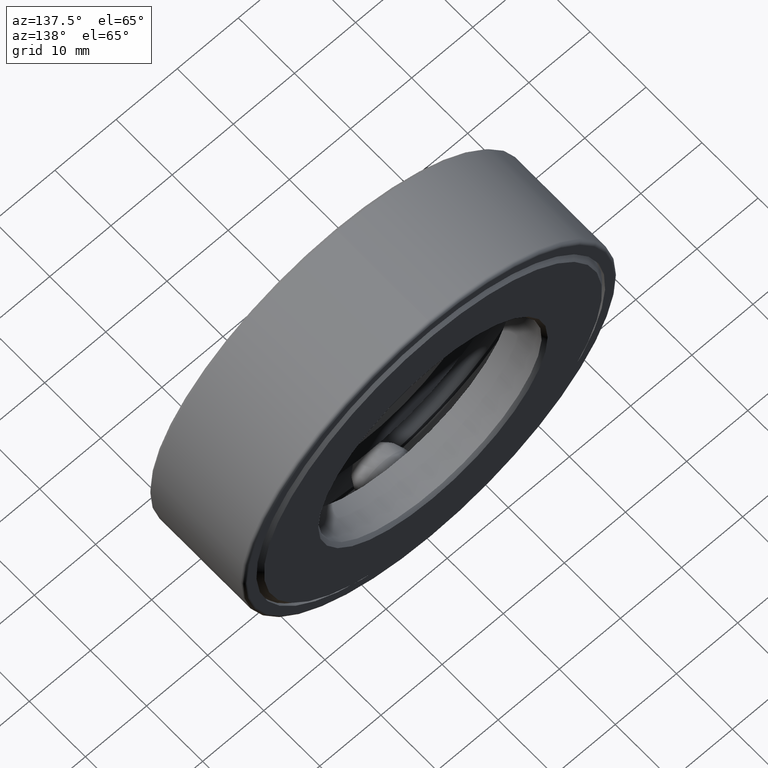
[diagram: clean part render]
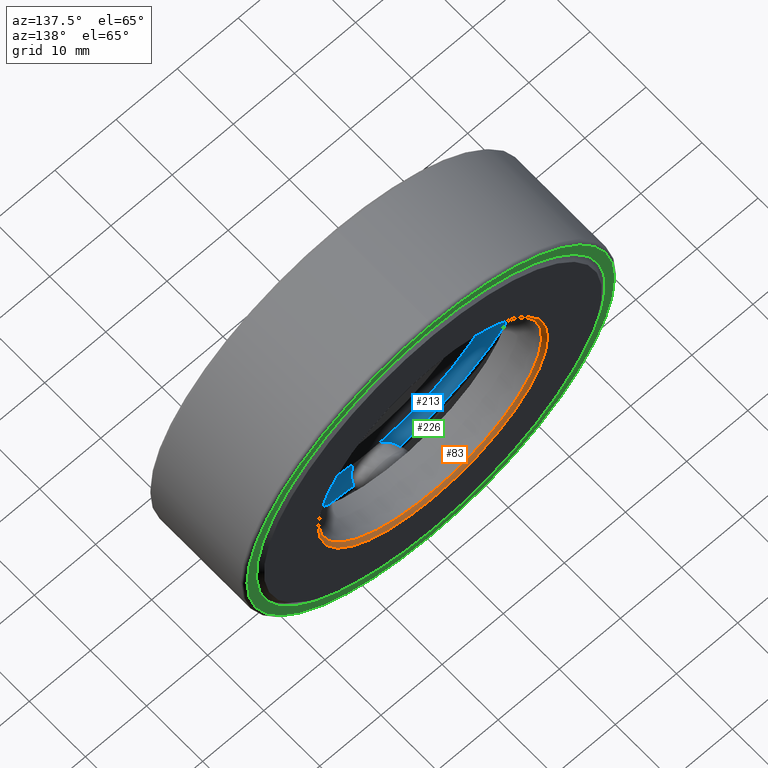
[diagram: same view with three faces highlighted in distinct colors, each labeled with its STEP entity id]
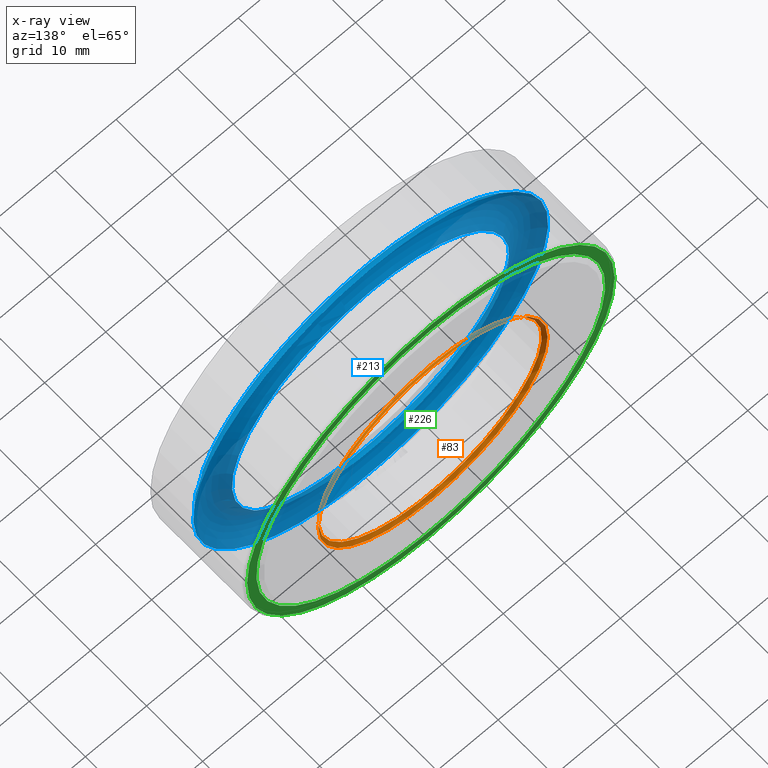
[diagram: x-ray of the same camera — body ghosted, the three highlighted faces saturated]
A machine part, auxiliary view with three faces highlighted in distinct colors.
The next image is the same camera in x-ray (body ghosted, the three faces saturated) — at least one of them is partly hidden behind the body in this view.
Their STEP definitions:

[orange] entity #83 — the highlighted conical surface has half-angle 45 deg.
#18 = EDGE_LOOP ( 'NONE', ( #506 ) ) ;
#36 = AXIS2_PLACEMENT_3D ( 'NONE', #382, #462, #47 ) ;
#47 = DIRECTION ( 'NONE',  ( 0.0000000000000000000, 0.0000000000000000000, 1.000000000000000000 ) ) ;
#78 = VERTEX_POINT ( 'NONE', #152 ) ;
#83 = ADVANCED_FACE ( 'NONE', ( #551, #536 ), #127, .F. ) ;
#107 = DIRECTION ( 'NONE',  ( 0.0000000000000000000, 0.0000000000000000000, 1.000000000000000000 ) ) ;
#127 = CONICAL_SURFACE ( 'NONE', #261, 0.7187500000000000000, 0.7853981633974517200 ) ;
#128 = ORIENTED_EDGE ( 'NONE', *, *, #538, .F. ) ;
#152 = CARTESIAN_POINT ( 'NONE',  ( 0.0000000000000000000, 0.6875000000000000000, 0.7387500000000001300 ) ) ;
#171 = CIRCLE ( 'NONE', #36, 0.7387500000000001300 ) ;
#185 = DIRECTION ( 'NONE',  ( -0.0000000000000000000, 1.000000000000000000, -0.0000000000000000000 ) ) ;
#246 = CARTESIAN_POINT ( 'NONE',  ( 0.0000000000000000000, 0.6674999999999998700, 0.0000000000000000000 ) ) ;
#261 = AXIS2_PLACEMENT_3D ( 'NONE', #246, #395, #107 ) ;
#329 = DIRECTION ( 'NONE',  ( 0.0000000000000000000, 0.0000000000000000000, 1.000000000000000000 ) ) ;
#353 = EDGE_LOOP ( 'NONE', ( #128 ) ) ;
#382 = CARTESIAN_POINT ( 'NONE',  ( 0.0000000000000000000, 0.6875000000000000000, 0.0000000000000000000 ) ) ;
#395 = DIRECTION ( 'NONE',  ( -0.0000000000000000000, 1.000000000000000000, -0.0000000000000000000 ) ) ;
#411 = VERTEX_POINT ( 'NONE', #481 ) ;
#427 = CIRCLE ( 'NONE', #448, 0.7187500000000000000 ) ;
#448 = AXIS2_PLACEMENT_3D ( 'NONE', #468, #185, #329 ) ;
#451 = EDGE_CURVE ( 'NONE', #78, #78, #171, .T. ) ;
#462 = DIRECTION ( 'NONE',  ( -0.0000000000000000000, 1.000000000000000000, -0.0000000000000000000 ) ) ;
#468 = CARTESIAN_POINT ( 'NONE',  ( 0.0000000000000000000, 0.6674999999999998700, 0.0000000000000000000 ) ) ;
#481 = CARTESIAN_POINT ( 'NONE',  ( 0.0000000000000000000, 0.6674999999999998700, 0.7187500000000000000 ) ) ;
#506 = ORIENTED_EDGE ( 'NONE', *, *, #451, .T. ) ;
#536 = FACE_BOUND ( 'NONE', #353, .T. ) ;
#538 = EDGE_CURVE ( 'NONE', #411, #411, #427, .T. ) ;
#551 = FACE_OUTER_BOUND ( 'NONE', #18, .T. ) ;

[blue] entity #213 — the highlighted toroidal blend (fillet) surface has major radius 25.854 mm and minor (blend) radius 3.9688 mm.
#59 = ORIENTED_EDGE ( 'NONE', *, *, #470, .T. ) ;
#98 = DIRECTION ( 'NONE',  ( -0.0000000000000000000, 1.000000000000000000, -0.0000000000000000000 ) ) ;
#154 = AXIS2_PLACEMENT_3D ( 'NONE', #596, #313, #323 ) ;
#212 = CARTESIAN_POINT ( 'NONE',  ( 0.0000000000000000000, 0.3437500000000000000, 0.0000000000000000000 ) ) ;
#213 = ADVANCED_FACE ( 'NONE', ( #479, #237 ), #587, .F. ) ;
#229 = CIRCLE ( 'NONE', #154, 0.8928749999999999700 ) ;
#237 = FACE_OUTER_BOUND ( 'NONE', #292, .T. ) ;
#238 = EDGE_CURVE ( 'NONE', #493, #493, #229, .T. ) ;
#292 = EDGE_LOOP ( 'NONE', ( #59 ) ) ;
#313 = DIRECTION ( 'NONE',  ( -0.0000000000000000000, 1.000000000000000000, -0.0000000000000000000 ) ) ;
#323 = DIRECTION ( 'NONE',  ( 0.0000000000000000000, 0.0000000000000000000, 1.000000000000000000 ) ) ;
#374 = EDGE_LOOP ( 'NONE', ( #428 ) ) ;
#402 = DIRECTION ( 'NONE',  ( 0.0000000000000000000, 0.0000000000000000000, 1.000000000000000000 ) ) ;
#428 = ORIENTED_EDGE ( 'NONE', *, *, #238, .F. ) ;
#461 = CARTESIAN_POINT ( 'NONE',  ( 0.0000000000000000000, 0.2499999999999998600, 0.0000000000000000000 ) ) ;
#470 = EDGE_CURVE ( 'NONE', #556, #556, #590, .T. ) ;
#479 = FACE_OUTER_BOUND ( 'NONE', #374, .T. ) ;
#493 = VERTEX_POINT ( 'NONE', #566 ) ;
#512 = CARTESIAN_POINT ( 'NONE',  ( 0.0000000000000000000, 0.2499999999999998600, 1.142874999999999900 ) ) ;
#525 = DIRECTION ( 'NONE',  ( -0.0000000000000000000, 1.000000000000000000, -0.0000000000000000000 ) ) ;
#554 = DIRECTION ( 'NONE',  ( 0.0000000000000000000, 0.0000000000000000000, 1.000000000000000000 ) ) ;
#556 = VERTEX_POINT ( 'NONE', #512 ) ;
#559 = AXIS2_PLACEMENT_3D ( 'NONE', #461, #98, #554 ) ;
#566 = CARTESIAN_POINT ( 'NONE',  ( 0.0000000000000000000, 0.2499999999999999200, 0.8928749999999999700 ) ) ;
#587 = TOROIDAL_SURFACE ( 'NONE', #597, 1.017874999999999900, 0.1562500000000000000 ) ;
#590 = CIRCLE ( 'NONE', #559, 1.142874999999999900 ) ;
#596 = CARTESIAN_POINT ( 'NONE',  ( 0.0000000000000000000, 0.2499999999999999200, 0.0000000000000000000 ) ) ;
#597 = AXIS2_PLACEMENT_3D ( 'NONE', #212, #525, #402 ) ;

[green] entity #226 — the highlighted planar face has unit normal (0, -1, 0).
#13 = CARTESIAN_POINT ( 'NONE',  ( 0.0000000000000000000, 0.6724999999999998800, 0.0000000000000000000 ) ) ;
#41 = ORIENTED_EDGE ( 'NONE', *, *, #115, .T. ) ;
#60 = PLANE ( 'NONE',  #133 ) ;
#62 = DIRECTION ( 'NONE',  ( 0.0000000000000000000, -0.0000000000000000000, -1.000000000000000000 ) ) ;
#64 = DIRECTION ( 'NONE',  ( 0.0000000000000000000, 0.0000000000000000000, 1.000000000000000000 ) ) ;
#68 = ORIENTED_EDGE ( 'NONE', *, *, #105, .F. ) ;
#70 = DIRECTION ( 'NONE',  ( -0.0000000000000000000, 1.000000000000000000, -0.0000000000000000000 ) ) ;
#90 = VERTEX_POINT ( 'NONE', #284 ) ;
#105 = EDGE_CURVE ( 'NONE', #90, #90, #173, .T. ) ;
#115 = EDGE_CURVE ( 'NONE', #589, #589, #263, .T. ) ;
#122 = CARTESIAN_POINT ( 'NONE',  ( 0.0000000000000000000, 0.6724999999999998800, 0.0000000000000000000 ) ) ;
#133 = AXIS2_PLACEMENT_3D ( 'NONE', #122, #579, #62 ) ;
#173 = CIRCLE ( 'NONE', #595, 1.123125000000000200 ) ;
#193 = CARTESIAN_POINT ( 'NONE',  ( 0.0000000000000000000, 0.6724999999999998800, 1.183125000000000000 ) ) ;
#226 = ADVANCED_FACE ( 'NONE', ( #344, #399 ), #60, .F. ) ;
#248 = DIRECTION ( 'NONE',  ( -0.0000000000000000000, 1.000000000000000000, -0.0000000000000000000 ) ) ;
#263 = CIRCLE ( 'NONE', #430, 1.183125000000000000 ) ;
#284 = CARTESIAN_POINT ( 'NONE',  ( 0.0000000000000000000, 0.6724999999999998800, 1.123125000000000200 ) ) ;
#344 = FACE_BOUND ( 'NONE', #453, .T. ) ;
#358 = CARTESIAN_POINT ( 'NONE',  ( 0.0000000000000000000, 0.6724999999999998800, 0.0000000000000000000 ) ) ;
#399 = FACE_OUTER_BOUND ( 'NONE', #465, .T. ) ;
#430 = AXIS2_PLACEMENT_3D ( 'NONE', #13, #248, #64 ) ;
#453 = EDGE_LOOP ( 'NONE', ( #68 ) ) ;
#465 = EDGE_LOOP ( 'NONE', ( #41 ) ) ;
#521 = DIRECTION ( 'NONE',  ( 0.0000000000000000000, 0.0000000000000000000, 1.000000000000000000 ) ) ;
#579 = DIRECTION ( 'NONE',  ( 0.0000000000000000000, -1.000000000000000000, 0.0000000000000000000 ) ) ;
#589 = VERTEX_POINT ( 'NONE', #193 ) ;
#595 = AXIS2_PLACEMENT_3D ( 'NONE', #358, #70, #521 ) ;